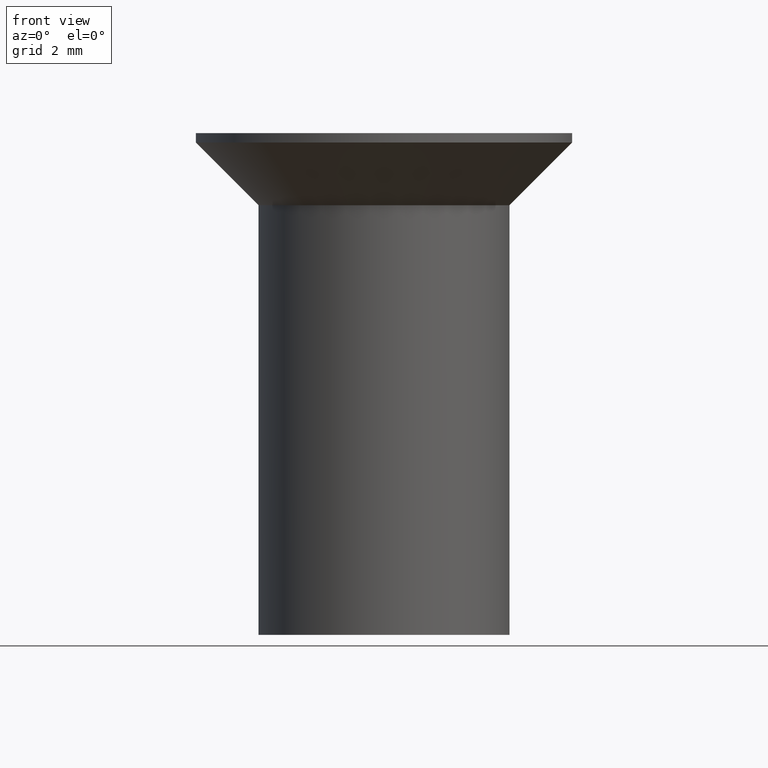
[diagram: clean part render]
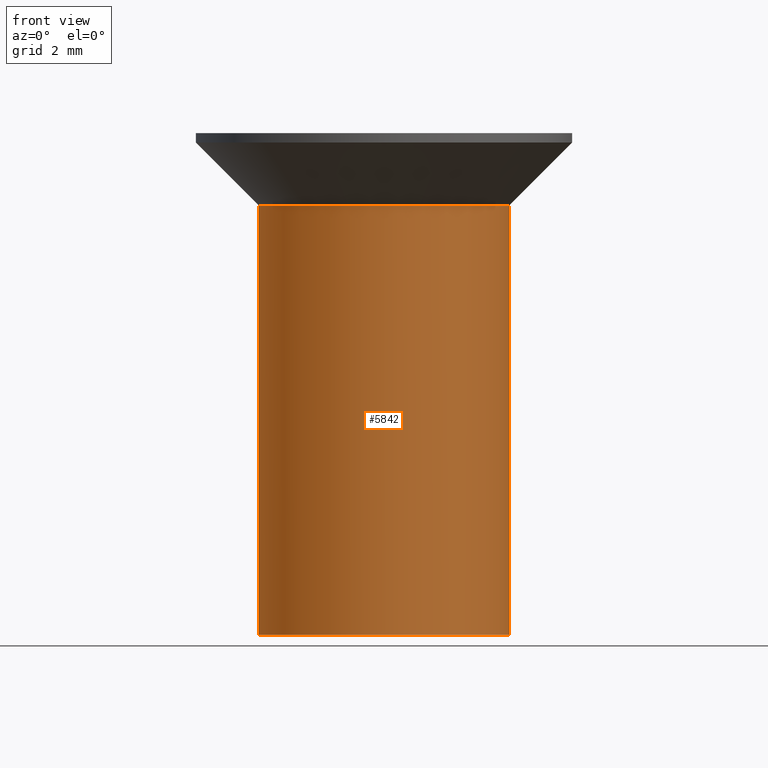
[diagram: same view with one face highlighted and labeled with its STEP entity id]
A machine part, front view. The second image highlights one B-rep face of the part: STEP entity #5842.
In plain terms, the highlighted cylindrical surface (partial cylindrical patch) has radius 4 mm, axis along (-0, -0, -1).
Its self-contained STEP definition (entity closure, byte-faithful):
#310 = AXIS2_PLACEMENT_3D ( 'NONE', #3126, #14090, #13027 ) ;
#527 = VERTEX_POINT ( 'NONE', #4252 ) ;
#854 = DIRECTION ( 'NONE',  ( -1.000000000000000000, 0.0000000000000000000, 0.0000000000000000000 ) ) ;
#901 = CYLINDRICAL_SURFACE ( 'NONE', #8043, 4.000000000000000000 ) ;
#976 = CARTESIAN_POINT ( 'NONE',  ( -4.000000000000000000, -1.898202538678397600E-015, -8.000000000000000000 ) ) ;
#1286 = CARTESIAN_POINT ( 'NONE',  ( -4.000000000000000000, -1.898202538678397600E-015, -8.000000000000000000 ) ) ;
#1293 = ORIENTED_EDGE ( 'NONE', *, *, #15389, .F. ) ;
#1550 = EDGE_LOOP ( 'NONE', ( #12642, #13951, #3240, #1293 ) ) ;
#1728 = VECTOR ( 'NONE', #8950, 1000.000000000000000 ) ;
#1897 = CARTESIAN_POINT ( 'NONE',  ( 0.0000000000000000000, -1.898202538678397600E-015, -8.000000000000000000 ) ) ;
#2115 = DIRECTION ( 'NONE',  ( -0.0000000000000000000, -0.0000000000000000000, -1.000000000000000000 ) ) ;
#2694 = CIRCLE ( 'NONE', #13427, 4.000000000000000900 ) ;
#2993 = VERTEX_POINT ( 'NONE', #3028 ) ;
#3028 = CARTESIAN_POINT ( 'NONE',  ( 4.000000000000000000, -1.408343819019456200E-015, -8.000000000000000000 ) ) ;
#3126 = CARTESIAN_POINT ( 'NONE',  ( 0.0000000000000000000, -1.898202538678397600E-015, -8.000000000000000000 ) ) ;
#3240 = ORIENTED_EDGE ( 'NONE', *, *, #13493, .T. ) ;
#3412 = DIRECTION ( 'NONE',  ( -1.000000000000000000, 0.0000000000000000000, 0.0000000000000000000 ) ) ;
#3508 = EDGE_CURVE ( 'NONE', #10353, #527, #2694, .T. ) ;
#3889 = VECTOR ( 'NONE', #2115, 1000.000000000000000 ) ;
#4252 = CARTESIAN_POINT ( 'NONE',  ( -4.000000000000000900, -1.285879139104720800E-015, 5.700000000000000200 ) ) ;
#4357 = DIRECTION ( 'NONE',  ( -0.0000000000000000000, -0.0000000000000000000, -1.000000000000000000 ) ) ;
#4922 = EDGE_CURVE ( 'NONE', #10353, #2993, #9021, .T. ) ;
#5842 = ADVANCED_FACE ( 'NONE', ( #11823 ), #901, .T. ) ;
#7011 = CARTESIAN_POINT ( 'NONE',  ( 0.0000000000000000000, -1.898202538678397600E-015, 5.700000000000000200 ) ) ;
#8043 = AXIS2_PLACEMENT_3D ( 'NONE', #1897, #4357, #854 ) ;
#8950 = DIRECTION ( 'NONE',  ( -0.0000000000000000000, -0.0000000000000000000, -1.000000000000000000 ) ) ;
#9021 = LINE ( 'NONE', #12671, #1728 ) ;
#10241 = VERTEX_POINT ( 'NONE', #1286 ) ;
#10353 = VERTEX_POINT ( 'NONE', #14199 ) ;
#10628 = LINE ( 'NONE', #976, #3889 ) ;
#11823 = FACE_OUTER_BOUND ( 'NONE', #1550, .T. ) ;
#11968 = DIRECTION ( 'NONE',  ( -0.0000000000000000000, -0.0000000000000000000, -1.000000000000000000 ) ) ;
#12642 = ORIENTED_EDGE ( 'NONE', *, *, #4922, .F. ) ;
#12671 = CARTESIAN_POINT ( 'NONE',  ( 4.000000000000000000, -1.408343819019456200E-015, -8.000000000000000000 ) ) ;
#12954 = CIRCLE ( 'NONE', #310, 4.000000000000000000 ) ;
#13027 = DIRECTION ( 'NONE',  ( -1.000000000000000000, 0.0000000000000000000, 0.0000000000000000000 ) ) ;
#13427 = AXIS2_PLACEMENT_3D ( 'NONE', #7011, #11968, #3412 ) ;
#13493 = EDGE_CURVE ( 'NONE', #527, #10241, #10628, .T. ) ;
#13951 = ORIENTED_EDGE ( 'NONE', *, *, #3508, .T. ) ;
#14090 = DIRECTION ( 'NONE',  ( -0.0000000000000000000, -0.0000000000000000000, -1.000000000000000000 ) ) ;
#14199 = CARTESIAN_POINT ( 'NONE',  ( 4.000000000000000900, -1.898202538678397600E-015, 5.700000000000000200 ) ) ;
#15389 = EDGE_CURVE ( 'NONE', #2993, #10241, #12954, .T. ) ;